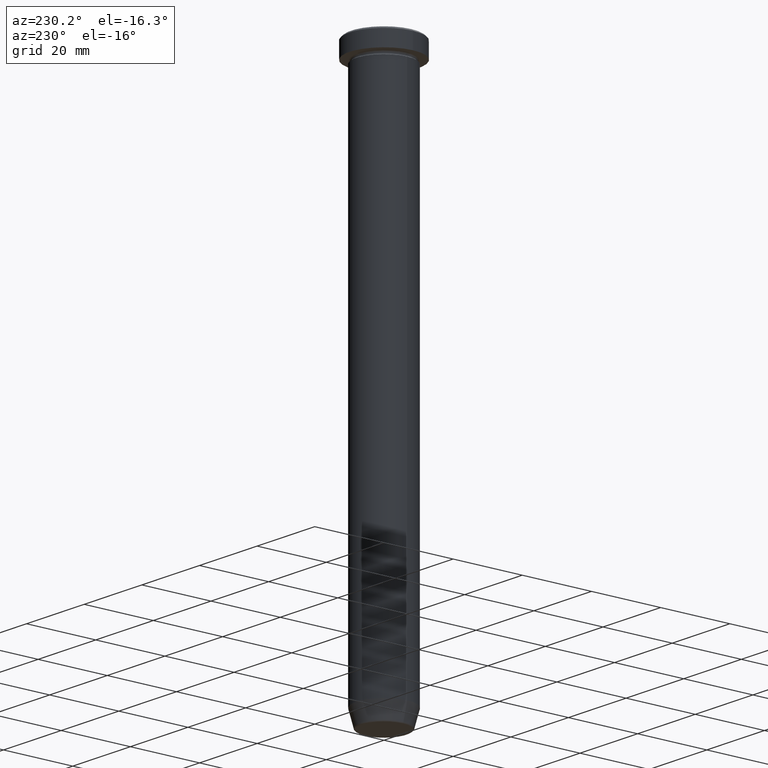
[diagram: clean part render]
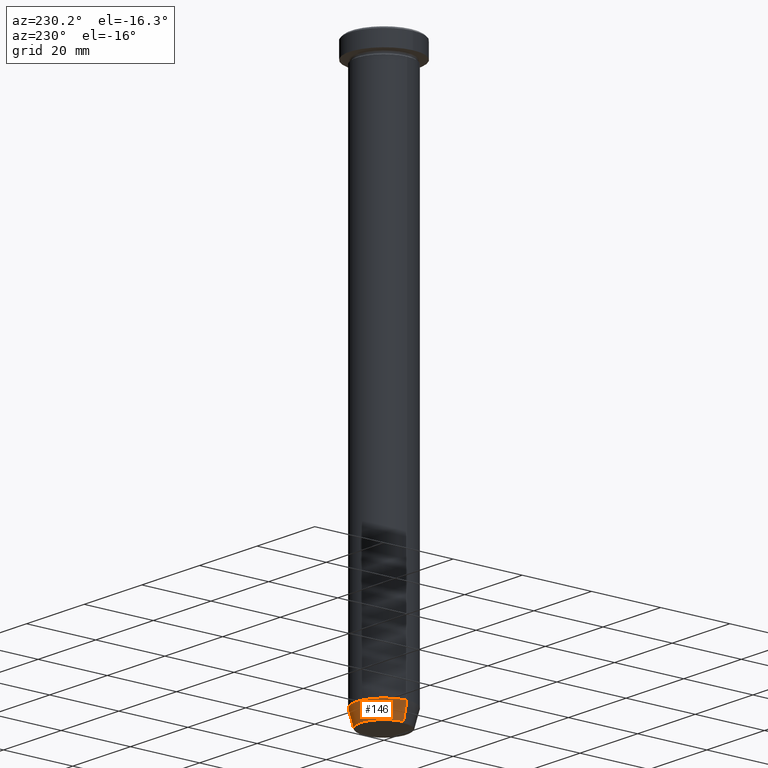
[diagram: same view with one face highlighted and labeled with its STEP entity id]
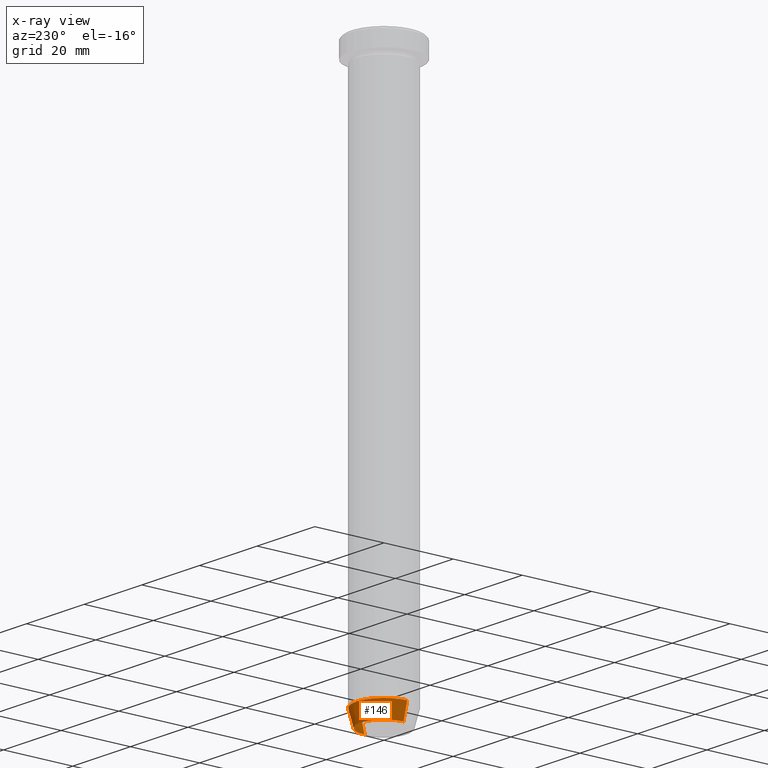
[diagram: x-ray of the same camera — body ghosted, the highlighted face saturated]
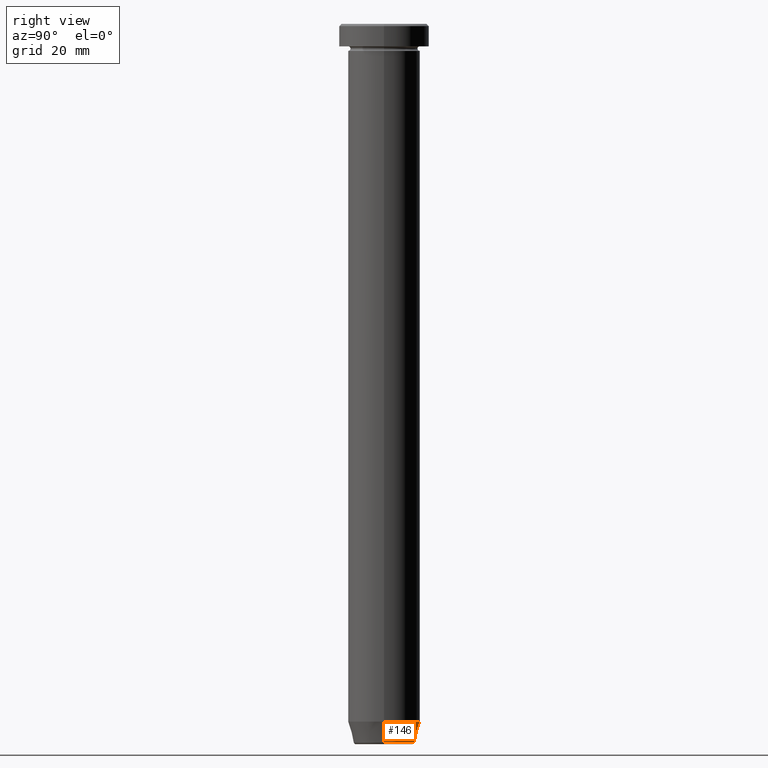
[diagram: same view with one face highlighted and labeled with its STEP entity id]
A machine part, auxiliary view. The second image highlights one B-rep face of the part: STEP entity #146.
The next image is the same camera in x-ray: the body ghosted, the highlighted face saturated — about 0% of this face is hidden behind the body in this view.
A second angle (right view) of the same face is appended — the face is thin or edge-on in the first view.
In plain terms, the highlighted conical surface has half-angle 15 deg.
Its self-contained STEP definition (entity closure, byte-faithful):
#12 = EDGE_CURVE ( 'NONE', #385, #373, #389, .T. ) ;
#19 = CONICAL_SURFACE ( 'NONE', #349, 6.660254037844382857, 0.2617993877991499074 ) ;
#24 = ORIENTED_EDGE ( 'NONE', *, *, #536, .T. ) ;
#45 = DIRECTION ( 'NONE',  ( -0.2588190451025211836, 3.169619151431770488E-17, 0.9659258262890680902 ) ) ;
#50 = CARTESIAN_POINT ( 'NONE',  ( 0.000000000000000000, 0.000000000000000000, -160.0000000000000000 ) ) ;
#65 = LINE ( 'NONE', #399, #369 ) ;
#74 = DIRECTION ( 'NONE',  ( -0.000000000000000000, -0.000000000000000000, 1.000000000000000000 ) ) ;
#81 = ORIENTED_EDGE ( 'NONE', *, *, #12, .T. ) ;
#91 = ORIENTED_EDGE ( 'NONE', *, *, #191, .F. ) ;
#102 = CARTESIAN_POINT ( 'NONE',  ( 8.000000000000000000, 0.000000000000000000, -155.0000000000000000 ) ) ;
#104 = DIRECTION ( 'NONE',  ( -0.000000000000000000, -0.000000000000000000, 1.000000000000000000 ) ) ;
#146 = ADVANCED_FACE ( 'NONE', ( #239 ), #19, .T. ) ;
#147 = CIRCLE ( 'NONE', #367, 8.000000000000000000 ) ;
#182 = AXIS2_PLACEMENT_3D ( 'NONE', #495, #74, #371 ) ;
#191 = EDGE_CURVE ( 'NONE', #317, #341, #147, .T. ) ;
#206 = EDGE_LOOP ( 'NONE', ( #81, #24, #91, #387 ) ) ;
#239 = FACE_OUTER_BOUND ( 'NONE', #206, .T. ) ;
#278 = DIRECTION ( 'NONE',  ( -0.000000000000000000, -0.000000000000000000, 1.000000000000000000 ) ) ;
#281 = CARTESIAN_POINT ( 'NONE',  ( 6.759553456999436882, 0.000000000000000000, -159.6294095225512422 ) ) ;
#317 = VERTEX_POINT ( 'NONE', #102 ) ;
#341 = VERTEX_POINT ( 'NONE', #546 ) ;
#349 = AXIS2_PLACEMENT_3D ( 'NONE', #50, #278, #465 ) ;
#367 = AXIS2_PLACEMENT_3D ( 'NONE', #442, #104, #570 ) ;
#369 = VECTOR ( 'NONE', #576, 1000.000000000000114 ) ;
#371 = DIRECTION ( 'NONE',  ( -1.000000000000000000, 0.000000000000000000, 0.000000000000000000 ) ) ;
#373 = VERTEX_POINT ( 'NONE', #424 ) ;
#385 = VERTEX_POINT ( 'NONE', #281 ) ;
#387 = ORIENTED_EDGE ( 'NONE', *, *, #415, .F. ) ;
#389 = CIRCLE ( 'NONE', #182, 6.759553456999436882 ) ;
#399 = CARTESIAN_POINT ( 'NONE',  ( 6.660254037844382857, 0.000000000000000000, -160.0000000000000000 ) ) ;
#415 = EDGE_CURVE ( 'NONE', #385, #317, #65, .T. ) ;
#424 = CARTESIAN_POINT ( 'NONE',  ( -6.759553456999436882, 9.037619948979306213E-16, -159.6294095225512422 ) ) ;
#442 = CARTESIAN_POINT ( 'NONE',  ( 0.000000000000000000, 0.000000000000000000, -155.0000000000000000 ) ) ;
#465 = DIRECTION ( 'NONE',  ( 1.000000000000000000, 0.000000000000000000, 0.000000000000000000 ) ) ;
#471 = CARTESIAN_POINT ( 'NONE',  ( -6.660254037844382857, 8.156458788954358790E-16, -160.0000000000000000 ) ) ;
#495 = CARTESIAN_POINT ( 'NONE',  ( 0.000000000000000000, 0.000000000000000000, -159.6294095225512422 ) ) ;
#536 = EDGE_CURVE ( 'NONE', #373, #341, #562, .T. ) ;
#544 = VECTOR ( 'NONE', #45, 1000.000000000000114 ) ;
#546 = CARTESIAN_POINT ( 'NONE',  ( -8.000000000000000000, 9.797174393178825657E-16, -155.0000000000000000 ) ) ;
#562 = LINE ( 'NONE', #471, #544 ) ;
#570 = DIRECTION ( 'NONE',  ( 1.000000000000000000, 0.000000000000000000, 0.000000000000000000 ) ) ;
#576 = DIRECTION ( 'NONE',  ( 0.2588190451025211836, 0.000000000000000000, 0.9659258262890680902 ) ) ;